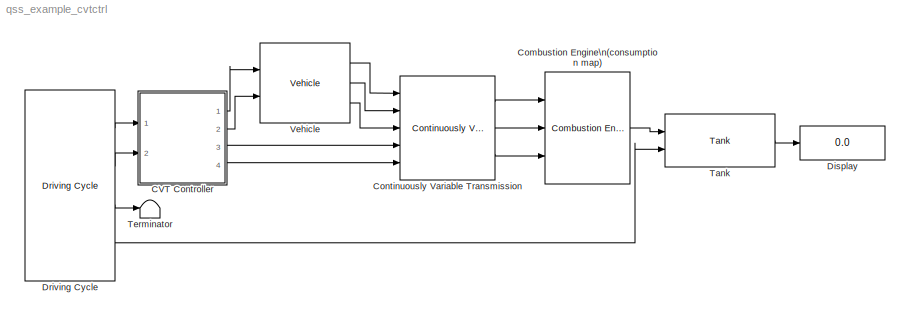
MODEL qss_example_cvtctrl
KIND model
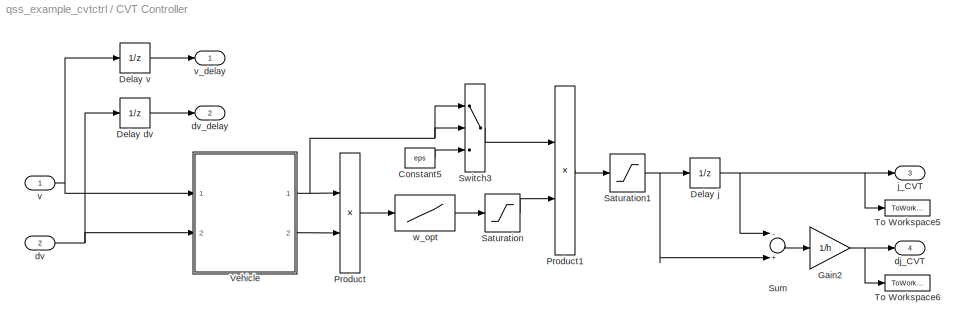
BLOCK [SubSystem] CVT Controller
  AncestorBlock = qss_tb_library/Controller/CVT Controller
  MaskCallbackString = ||||
  MaskDescription = This block calculates the optimum gear ratio and its change during one integration step for a CVT.\n\nInput:\n=====\n	v		Speed [m/s]\n	dv		Acceleration [m/s^2]\n\nOutput:\n======\n	v_delay		Speed one step delayed [m/s]\n	dv_delay	Acceleration one step delayed [m/s^2]\n	j_CVT		Gear ratio [-]\n	dj_CVT		Change of gear ratio [1/s]
  MaskEnableString = on,on,on,on,on
  MaskHideContents = off
  MaskIconFrame = on
  MaskIconOpaque = on
  MaskIconRotate = none
  MaskIconUnits = autoscale
  MaskInitialization = init_CVT_ctrl;
  MaskPromptString = Lower gear ratio limit [-]|Upper gear ratio limit [-]|Minimum wheel speed [rad/s]|CVT idle speed [rad/s]|Maximum CVT speed [rad/s]
  MaskStyleString = edit,edit,edit,edit,edit
  MaskTabNameString = ,,,,
  MaskToolTipString = on,on,on,on,on
  MaskTunableValueString = on,on,on,on,on
  MaskType = CVT Controller
  MaskValueString = 3|15|3|100|300
  MaskVarAliasString = ,,,,
  MaskVariables = j_CVT_min=@1;j_CVT_max=@2;w_wheel_min=@3;w_CVT_idle=@4;w_CVT_upper=@5;
  MaskVisibilityString = on,on,on,on,on
  MinAlgLoopOccurrences = off
  Ports = [2, 4]
  RTWSystemCode = Auto
  Tag = cvt controller
  TreatAsAtomicUnit = off
BLOCK [Constant] CVT Controller/Constant5
  Value = eps
BLOCK [UnitDelay] CVT Controller/Delay dv
  SampleTime = h
BLOCK [UnitDelay] CVT Controller/Delay j
  SampleTime = h
  X0 = j_CVT_min
BLOCK [UnitDelay] CVT Controller/Delay v
  SampleTime = h
BLOCK [Gain] CVT Controller/Gain2
  Gain = 1/h
BLOCK [Product] CVT Controller/Product
  Ports = [2, 1]
BLOCK [Product] CVT Controller/Product1
  Inputs = /*
  Ports = [2, 1]
BLOCK [Saturate] CVT Controller/Saturation
  LowerLimit = w_CVT_idle
  UpperLimit = w_CVT_upper
BLOCK [Saturate] CVT Controller/Saturation1
  LowerLimit = j_CVT_min
  UpperLimit = j_CVT_max
BLOCK [Sum] CVT Controller/Sum
  Inputs = -+
  Ports = [2, 1]
BLOCK [Switch] CVT Controller/Switch3
  Threshold = w_wheel_min
BLOCK [ToWorkspace] CVT Controller/To Workspace5
  MaxDataPoints = inf
  SampleTime = -1
  SaveFormat = Array
  VariableName = j_CVT
BLOCK [ToWorkspace] CVT Controller/To Workspace6
  MaxDataPoints = inf
  SampleTime = -1
  SaveFormat = Array
  VariableName = dj_CVT
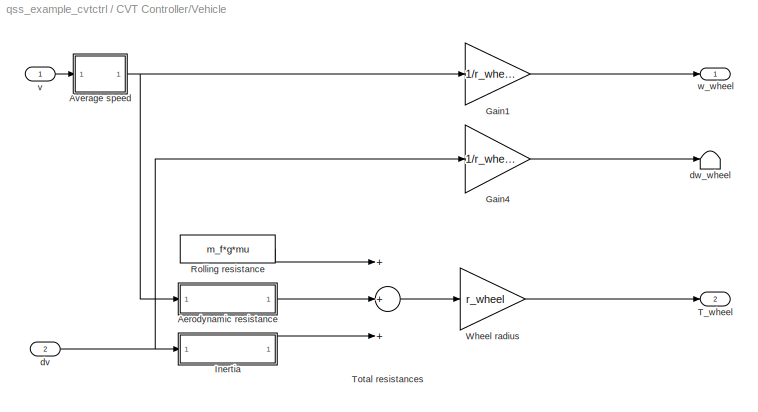
BLOCK [SubSystem] CVT Controller/Vehicle
  AncestorBlock = qss_tb_library/Vehicle/Vehicle
  MaskCallbackString = |||||
  MaskDescription = This block computes the power required from the vehicle.\n\nInput:\n=====\n	v		Speed [m/s]\n	dv		Acceleration [m/s^2]\n\nOutput:\n======\n	w_wheel	Speed of the wheel [rad/s]\n	dw_wheel	Acceleration of the wheel [rad/s^2]\n	T_wheel	Torque on the wheel [Nm]
  MaskEnableString = on,on,on,on,on,on
  MaskHideContents = off
  MaskIconFrame = on
  MaskIconOpaque = off
  MaskIconRotate = none
  MaskIconUnits = autoscale
  MaskInitialization = init_vehicle;\n
  MaskPromptString = Total mass of the vehicle [kg]|Rotating mass [%]|Vehicle cross section [m^2]|Wheel diameter [m]|Drag coefficient [-]|Rolling friction coefficient [-]
  MaskStyleString = edit,edit,edit,edit,edit,edit
  MaskTabNameString = ,,,,,
  MaskToolTipString = on,on,on,on,on,on
  MaskTunableValueString = on,on,on,on,on,on
  MaskType = Vehicle
  MaskValueString = 750|5|1.8|0.5|0.22|0.008
  MaskVarAliasString = ,,,,,
  MaskVariables = m_f=@1;mt2m_f=@2;A_f=@3;d_wheel=@4;cw=@5;mu=@6;
  MaskVisibilityString = on,on,on,on,on,on
  MinAlgLoopOccurrences = off
  Ports = [2, 2]
  RTWSystemCode = Auto
  Tag = vehicle
  TreatAsAtomicUnit = off
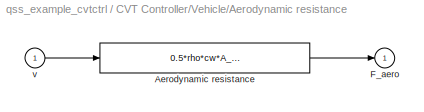
BLOCK [SubSystem] CVT Controller/Vehicle/Aerodynamic resistance
  MaskHideContents = off
  MinAlgLoopOccurrences = off
  Ports = [1, 1]
  RTWSystemCode = Auto
  TreatAsAtomicUnit = off
BLOCK [Fcn] CVT Controller/Vehicle/Aerodynamic resistance/Aerodynamic resistance
  Expr = 0.5*rho*cw*A_f*u^2
BLOCK [Outport] CVT Controller/Vehicle/Aerodynamic resistance/F_aero
  BusOutputAsStruct = off
  IconDisplay = Port number
  InitialOutput = 0
BLOCK [Inport] CVT Controller/Vehicle/Aerodynamic resistance/v
  IconDisplay = Port number
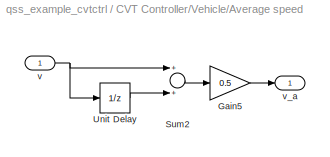
BLOCK [SubSystem] CVT Controller/Vehicle/Average speed
  MaskHideContents = off
  MinAlgLoopOccurrences = off
  Ports = [1, 1]
  RTWSystemCode = Auto
  TreatAsAtomicUnit = off
BLOCK [Gain] CVT Controller/Vehicle/Average speed/Gain5
  Gain = 0.5
BLOCK [Sum] CVT Controller/Vehicle/Average speed/Sum2
  Ports = [2, 1]
BLOCK [UnitDelay] CVT Controller/Vehicle/Average speed/Unit Delay
  SampleTime = h
BLOCK [Inport] CVT Controller/Vehicle/Average speed/v
  IconDisplay = Port number
BLOCK [Outport] CVT Controller/Vehicle/Average speed/v_a
  BusOutputAsStruct = off
  IconDisplay = Port number
  InitialOutput = 0
BLOCK [Gain] CVT Controller/Vehicle/Gain1
  Gain = 1/r_wheel
BLOCK [Gain] CVT Controller/Vehicle/Gain4
  Gain = 1/r_wheel
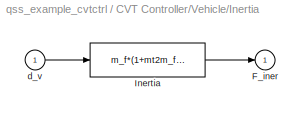
BLOCK [SubSystem] CVT Controller/Vehicle/Inertia
  MaskHideContents = off
  MinAlgLoopOccurrences = off
  Ports = [1, 1]
  RTWSystemCode = Auto
  TreatAsAtomicUnit = off
BLOCK [Outport] CVT Controller/Vehicle/Inertia/F_iner
  BusOutputAsStruct = off
  IconDisplay = Port number
  InitialOutput = 0
BLOCK [Fcn] CVT Controller/Vehicle/Inertia/Inertia
  Expr = m_f*(1+mt2m_f)*u/h
BLOCK [Inport] CVT Controller/Vehicle/Inertia/d_v
  IconDisplay = Port number
BLOCK [Constant] CVT Controller/Vehicle/Rolling resistance
  Value = m_f*g*mu
BLOCK [Outport] CVT Controller/Vehicle/T_wheel
  BusOutputAsStruct = off
  IconDisplay = Port number
  InitialOutput = 0
  Port = 2
BLOCK [Sum] CVT Controller/Vehicle/Total resistances
  Inputs = +++
  Ports = [3, 1]
BLOCK [Gain] CVT Controller/Vehicle/Wheel radius
  Gain = r_wheel
BLOCK [Inport] CVT Controller/Vehicle/dv
  IconDisplay = Port number
  Port = 2
BLOCK [Terminator] CVT Controller/Vehicle/dw_wheel
BLOCK [Inport] CVT Controller/Vehicle/v
  IconDisplay = Port number
BLOCK [Outport] CVT Controller/Vehicle/w_wheel
  BusOutputAsStruct = off
  IconDisplay = Port number
  InitialOutput = 0
BLOCK [Outport] CVT Controller/dj_CVT
  BusOutputAsStruct = off
  IconDisplay = Port number
  InitialOutput = 0
  Port = 4
BLOCK [Inport] CVT Controller/dv
  IconDisplay = Port number
  Port = 2
BLOCK [Outport] CVT Controller/dv_delay
  BusOutputAsStruct = off
  IconDisplay = Port number
  InitialOutput = 0
  Port = 2
BLOCK [Outport] CVT Controller/j_CVT
  BusOutputAsStruct = off
  IconDisplay = Port number
  InitialOutput = 0
  Port = 3
BLOCK [Inport] CVT Controller/v
  IconDisplay = Port number
BLOCK [Outport] CVT Controller/v_delay
  BusOutputAsStruct = off
  IconDisplay = Port number
  InitialOutput = 0
BLOCK [Lookup] CVT Controller/w_opt
  InputValues = P_CVT_opt
  OutputValues = w_CVT_opt
BLOCK [Reference] Combustion Engine\n(consumption map)  REF=qss_tb_library/Energy Converter/Combustion Engine\n(consumption map)  (lib defined in mdl_a75e96b0ff2a, mdl_aad2a3137e65)
  ENABLE_FUEL_CUTOFF = on
  P_CE_cutoff = 0
  P_CE_idle = 2600
  P_aux = 300
  Ports = [3, 1]
  ShowPortLabels = on
  SourceBlock = qss_tb_library/Energy Converter/Combustion Engine\n(consumption map)
  SourceType = Combustion Engine (based on consumption map)
  T_CE_cutoff = 5
  Tag = combustion engine
  V_d = 0.708
  engine_type = Otto
  scale_CE = 1
  theta_CE = 0.05
  w_CE_idle = 105
BLOCK [Reference] Continuously Variable Transmission  REF=qss_tb_library/Gear System/Continuously Variable Transmission  (lib defined in mdl_a75e96b0ff2a, mdl_aad2a3137e65)
  P_CVT0 = 400
  Ports = [5, 3]
  ShowPortLabels = on
  SourceBlock = qss_tb_library/Gear System/Continuously Variable Transmission
  SourceType = CVT
  Tag = cvt
  e_CVT = 0.97
  w_wheel_min = 3
BLOCK [Display] Display
  Decimation = 1
  Lockdown = off
  Ports = [1]
BLOCK [Reference] Driving Cycle  REF=qss_tb_library/Driving Cycle/Driving Cycle  (lib defined in mdl_a75e96b0ff2a, mdl_aad2a3137e65)
  Ports = [0, 4]
  ShowPortLabels = on
  SourceBlock = qss_tb_library/Driving Cycle/Driving Cycle
  SourceType = Driving Cycle
  Tag = cycle
  autostop = on
  cyclenr = Europe: NEDC
  stepsize = 1
BLOCK [Reference] Tank  REF=qss_tb_library/Energy Source/Tank  (lib defined in mdl_a75e96b0ff2a, mdl_aad2a3137e65)
  Ports = [2, 1]
  ShowPortLabels = on
  SourceBlock = qss_tb_library/Energy Source/Tank
  SourceType = Tank
  Tag = tank
  flag_cold_start = on
  fuel = Gasoline
BLOCK [Terminator] Terminator
BLOCK [Reference] Vehicle  REF=qss_tb_library/Vehicle/Vehicle  (lib defined in mdl_a75e96b0ff2a, mdl_aad2a3137e65)
  A_f = 1.8
  Ports = [2, 3]
  ShowPortLabels = on
  SourceBlock = qss_tb_library/Vehicle/Vehicle
  SourceType = Vehicle
  Tag = vehicle
  cw = 0.22
  d_wheel = 0.5
  m_f = 750
  mt2m_f = 5
  mu = 0.008
LINE CVT Controller/Constant5:1 -> CVT Controller/Switch3:3
LINE CVT Controller/Delay dv:1 -> CVT Controller/dv_delay:1
NET CVT Controller/Delay j:1 -> CVT Controller/Sum:1, CVT Controller/To Workspace5:1, CVT Controller/j_CVT:1
LINE CVT Controller/Delay v:1 -> CVT Controller/v_delay:1
NET CVT Controller/Gain2:1 -> CVT Controller/To Workspace6:1, CVT Controller/dj_CVT:1
LINE CVT Controller/Product1:1 -> CVT Controller/Saturation1:1
LINE CVT Controller/Product:1 -> CVT Controller/w_opt:1
NET CVT Controller/Saturation1:1 -> CVT Controller/Delay j:1, CVT Controller/Sum:2
LINE CVT Controller/Saturation:1 -> CVT Controller/Product1:2
LINE CVT Controller/Sum:1 -> CVT Controller/Gain2:1
LINE CVT Controller/Switch3:1 -> CVT Controller/Product1:1
LINE CVT Controller/Vehicle/Aerodynamic resistance/Aerodynamic resistance:1 -> CVT Controller/Vehicle/Aerodynamic resistance/F_aero:1
LINE CVT Controller/Vehicle/Aerodynamic resistance/v:1 -> CVT Controller/Vehicle/Aerodynamic resistance/Aerodynamic resistance:1
LINE CVT Controller/Vehicle/Aerodynamic resistance:1 -> CVT Controller/Vehicle/Total resistances:2
LINE CVT Controller/Vehicle/Average speed/Gain5:1 -> CVT Controller/Vehicle/Average speed/v_a:1
LINE CVT Controller/Vehicle/Average speed/Sum2:1 -> CVT Controller/Vehicle/Average speed/Gain5:1
LINE CVT Controller/Vehicle/Average speed/Unit Delay:1 -> CVT Controller/Vehicle/Average speed/Sum2:2
NET CVT Controller/Vehicle/Average speed/v:1 -> CVT Controller/Vehicle/Average speed/Sum2:1, CVT Controller/Vehicle/Average speed/Unit Delay:1
NET CVT Controller/Vehicle/Average speed:1 -> CVT Controller/Vehicle/Aerodynamic resistance:1, CVT Controller/Vehicle/Gain1:1
LINE CVT Controller/Vehicle/Gain1:1 -> CVT Controller/Vehicle/w_wheel:1
LINE CVT Controller/Vehicle/Gain4:1 -> CVT Controller/Vehicle/dw_wheel:1
LINE CVT Controller/Vehicle/Inertia/Inertia:1 -> CVT Controller/Vehicle/Inertia/F_iner:1
LINE CVT Controller/Vehicle/Inertia/d_v:1 -> CVT Controller/Vehicle/Inertia/Inertia:1
LINE CVT Controller/Vehicle/Inertia:1 -> CVT Controller/Vehicle/Total resistances:3
LINE CVT Controller/Vehicle/Rolling resistance:1 -> CVT Controller/Vehicle/Total resistances:1
LINE CVT Controller/Vehicle/Total resistances:1 -> CVT Controller/Vehicle/Wheel radius:1
LINE CVT Controller/Vehicle/Wheel radius:1 -> CVT Controller/Vehicle/T_wheel:1
NET CVT Controller/Vehicle/dv:1 -> CVT Controller/Vehicle/Gain4:1, CVT Controller/Vehicle/Inertia:1
LINE CVT Controller/Vehicle/v:1 -> CVT Controller/Vehicle/Average speed:1
NET CVT Controller/Vehicle:1 -> CVT Controller/Product:1, CVT Controller/Switch3:1, CVT Controller/Switch3:2
LINE CVT Controller/Vehicle:2 -> CVT Controller/Product:2
NET CVT Controller/dv:1 -> CVT Controller/Delay dv:1, CVT Controller/Vehicle:2
NET CVT Controller/v:1 -> CVT Controller/Delay v:1, CVT Controller/Vehicle:1
LINE CVT Controller/w_opt:1 -> CVT Controller/Saturation:1
LINE CVT Controller:1 -> Vehicle:1
LINE CVT Controller:2 -> Vehicle:2
LINE CVT Controller:3 -> Continuously Variable Transmission:4
LINE CVT Controller:4 -> Continuously Variable Transmission:5
LINE Combustion Engine\n(consumption map):1 -> Tank:1
LINE Continuously Variable Transmission:1 -> Combustion Engine\n(consumption map):1
LINE Continuously Variable Transmission:2 -> Combustion Engine\n(consumption map):2
LINE Continuously Variable Transmission:3 -> Combustion Engine\n(consumption map):3
LINE Driving Cycle:1 -> CVT Controller:1
LINE Driving Cycle:2 -> CVT Controller:2
LINE Driving Cycle:3 -> Terminator:1
LINE Driving Cycle:4 -> Tank:2
LINE Tank:1 -> Display:1
LINE Vehicle:1 -> Continuously Variable Transmission:1
LINE Vehicle:2 -> Continuously Variable Transmission:2
LINE Vehicle:3 -> Continuously Variable Transmission:3
note: NET lines group one-source signal fan-out (src -> all destinations, sorted); 1:1 wires keep LINE
